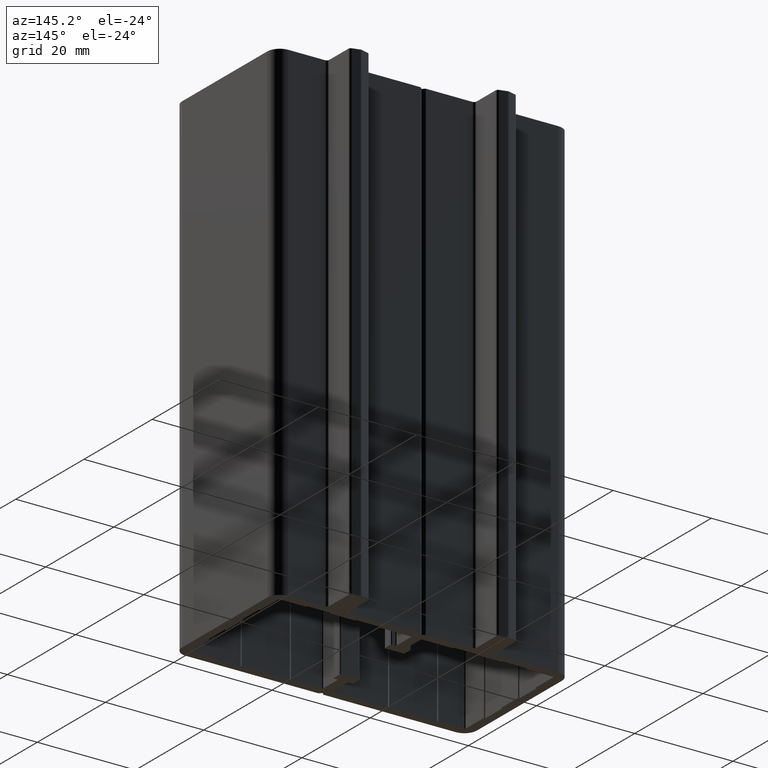
[diagram: clean part render]
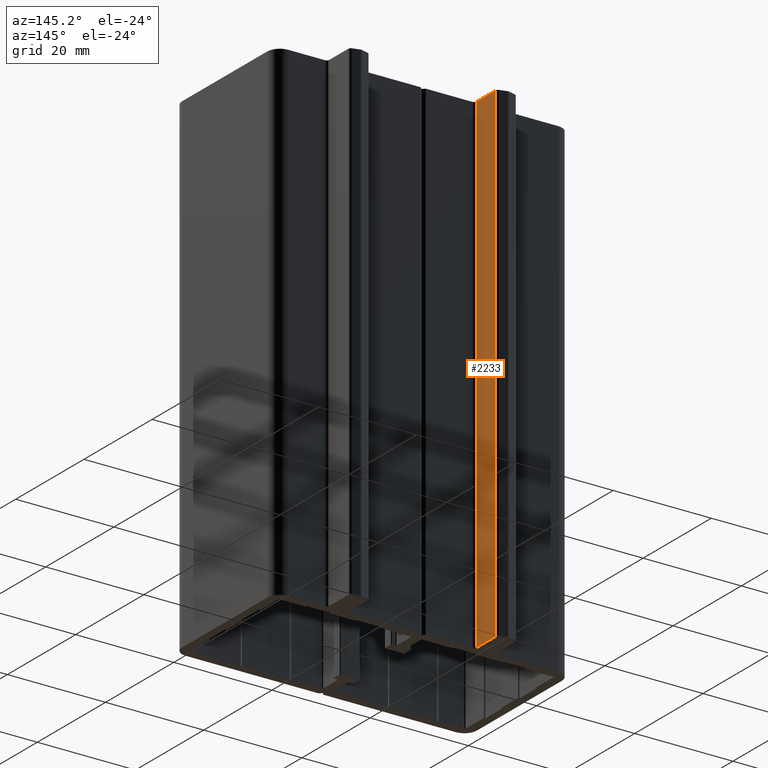
[diagram: same view with one face highlighted and labeled with its STEP entity id]
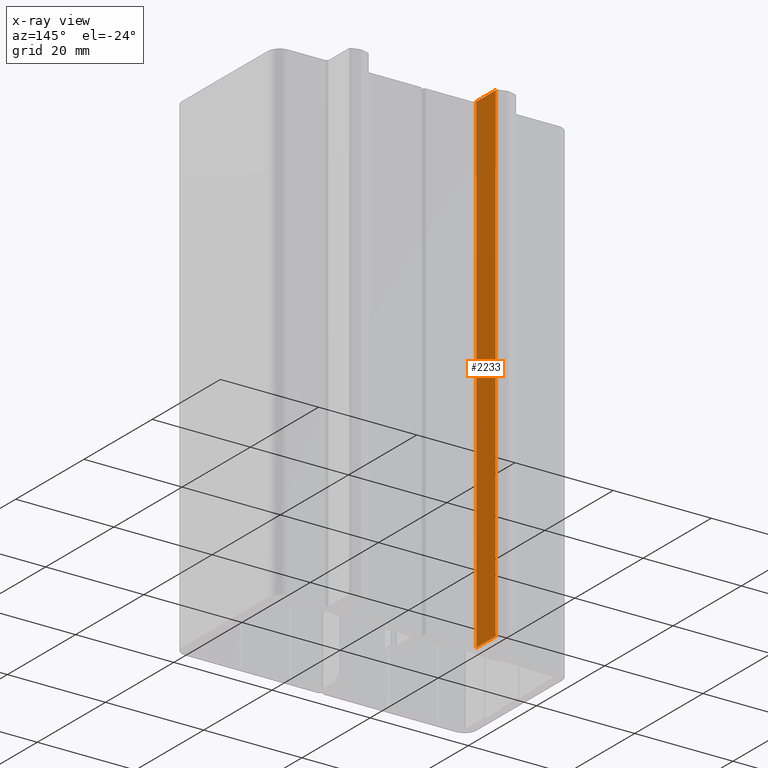
[diagram: x-ray of the same camera — body ghosted, the highlighted face saturated]
A machine part, auxiliary view. The second image highlights one B-rep face of the part: STEP entity #2233.
The next image is the same camera in x-ray: the body ghosted, the highlighted face saturated — about 0% of this face is hidden behind the body in this view.
In plain terms, the highlighted planar face has unit normal (-1, 0, 0).
Its self-contained STEP definition (entity closure, byte-faithful):
#84=CARTESIAN_POINT('',(19.511985819728793,30.480890048476461,100.0));
#85=VERTEX_POINT('',#84);
#93=CARTESIAN_POINT('',(19.511985819728601,36.078966259830473,100.0));
#94=VERTEX_POINT('',#93);
#95=CARTESIAN_POINT('',(19.511985819728793,30.480890048476461,100.0));
#96=DIRECTION('',(0.0,1.0,0.0));
#97=VECTOR('',#96,5.598076211354012);
#98=LINE('',#95,#97);
#99=EDGE_CURVE('',#85,#94,#98,.T.);
#1223=CARTESIAN_POINT('',(19.511985819728601,36.078966259830473,0.0));
#1224=VERTEX_POINT('',#1223);
#1232=CARTESIAN_POINT('',(19.511985819728793,30.480890048476461,0.0));
#1233=VERTEX_POINT('',#1232);
#1234=CARTESIAN_POINT('',(19.511985819728793,30.480890048476461,0.0));
#1235=DIRECTION('',(0.0,1.0,0.0));
#1236=VECTOR('',#1235,5.598076211354012);
#1237=LINE('',#1234,#1236);
#1238=EDGE_CURVE('',#1233,#1224,#1237,.T.);
#2206=CARTESIAN_POINT('',(19.511985819728793,30.480890048476461,100.0));
#2207=DIRECTION('',(0.0,0.0,-1.0));
#2208=VECTOR('',#2207,100.0);
#2209=LINE('',#2206,#2208);
#2210=EDGE_CURVE('',#85,#1233,#2209,.T.);
#2217=CARTESIAN_POINT('',(19.511985819728793,36.358870070398176,-5.0));
#2218=DIRECTION('',(-1.0,0.0,0.0));
#2219=DIRECTION('',(0.0,-1.0,0.0));
#2220=AXIS2_PLACEMENT_3D('',#2217,#2218,#2219);
#2221=PLANE('',#2220);
#2222=ORIENTED_EDGE('',*,*,#1238,.T.);
#2223=CARTESIAN_POINT('',(19.511985819728601,36.078966259830473,100.0));
#2224=DIRECTION('',(0.0,0.0,-1.0));
#2225=VECTOR('',#2224,100.0);
#2226=LINE('',#2223,#2225);
#2227=EDGE_CURVE('',#94,#1224,#2226,.T.);
#2228=ORIENTED_EDGE('',*,*,#2227,.F.);
#2229=ORIENTED_EDGE('',*,*,#99,.F.);
#2230=ORIENTED_EDGE('',*,*,#2210,.T.);
#2231=EDGE_LOOP('',(#2222,#2228,#2229,#2230));
#2232=FACE_OUTER_BOUND('',#2231,.T.);
#2233=ADVANCED_FACE('',(#2232),#2221,.F.);